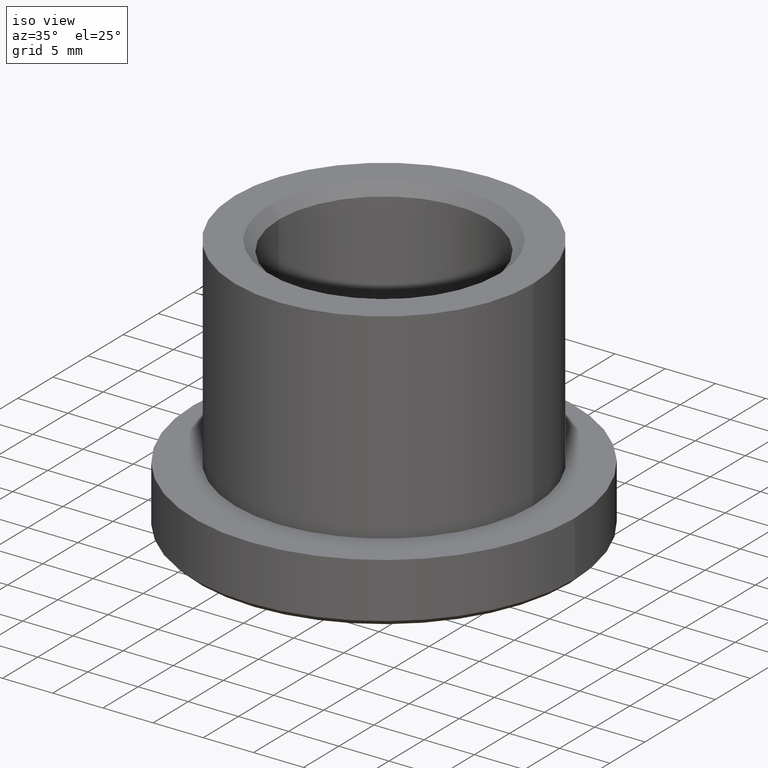
[diagram: clean part render]
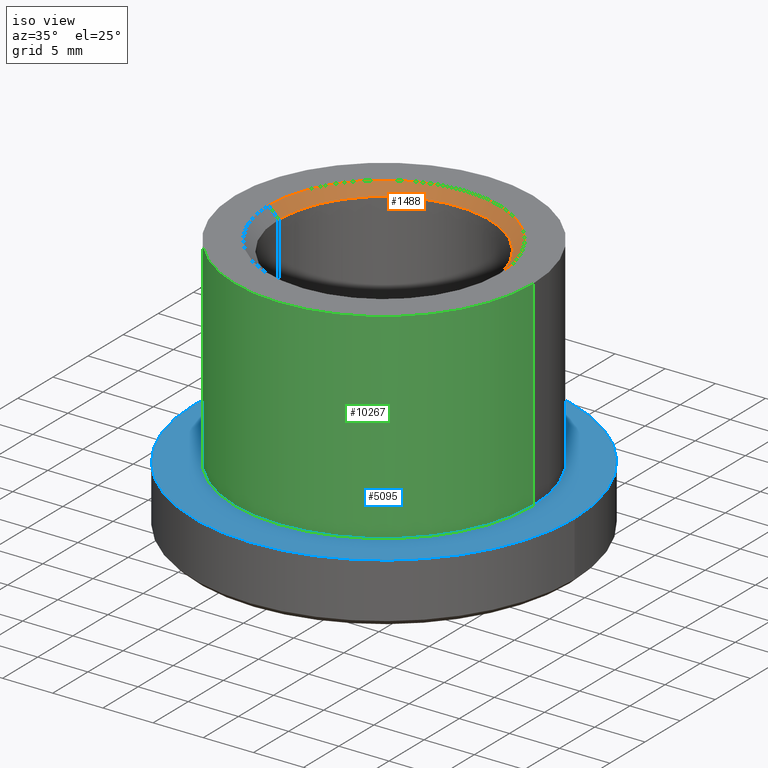
[diagram: same view with three faces highlighted in distinct colors, each labeled with its STEP entity id]
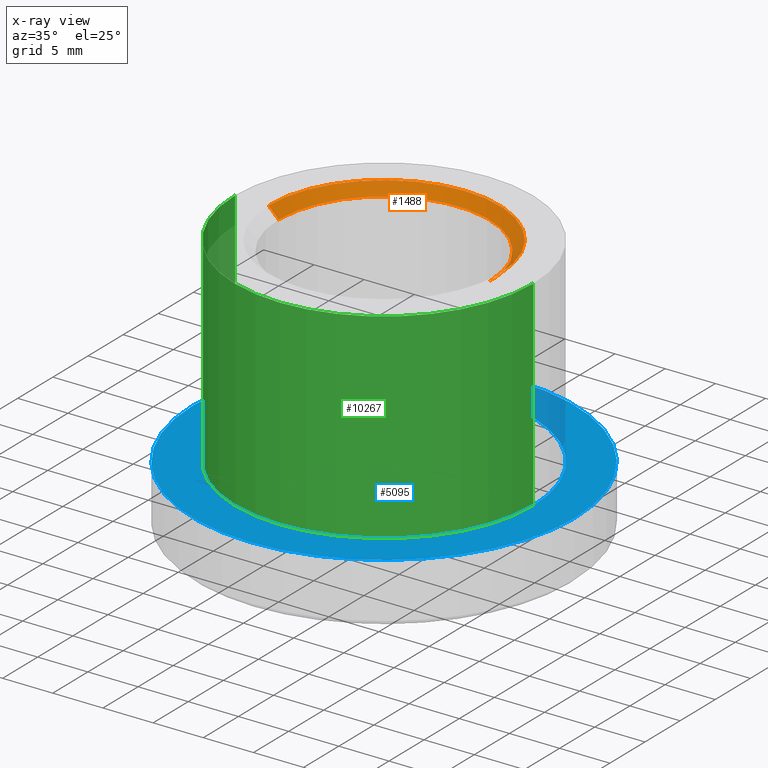
[diagram: x-ray of the same camera — body ghosted, the three highlighted faces saturated]
A machine part, iso view with three faces highlighted in distinct colors.
The next image is the same camera in x-ray (body ghosted, the three faces saturated) — at least one of them is partly hidden behind the body in this view.
Their STEP definitions:

[orange] entity #1488 — the highlighted conical surface has half-angle 45 deg.
#421 = DIRECTION ( 'NONE',  ( 0.000000000000000000, 0.000000000000000000, 1.000000000000000000 ) ) ;
#911 = VERTEX_POINT ( 'NONE', #8747 ) ;
#961 = DIRECTION ( 'NONE',  ( 0.000000000000000000, 0.000000000000000000, 1.000000000000000000 ) ) ;
#1075 = VERTEX_POINT ( 'NONE', #10388 ) ;
#1122 = CARTESIAN_POINT ( 'NONE',  ( 10.49999999999999467, 0.000000000000000000, 11.99999999999999645 ) ) ;
#1316 = ORIENTED_EDGE ( 'NONE', *, *, #5669, .F. ) ;
#1456 = CARTESIAN_POINT ( 'NONE',  ( 10.49999999999999467, 0.000000000000000000, 11.99999999999999645 ) ) ;
#1488 = ADVANCED_FACE ( 'NONE', ( #8992 ), #12753, .F. ) ;
#1790 = AXIS2_PLACEMENT_3D ( 'NONE', #12989, #421, #8793 ) ;
#1978 = CARTESIAN_POINT ( 'NONE',  ( 0.000000000000000000, 0.000000000000000000, 11.99999999999999645 ) ) ;
#3127 = ORIENTED_EDGE ( 'NONE', *, *, #3569, .T. ) ;
#3569 = EDGE_CURVE ( 'NONE', #10801, #1075, #11413, .T. ) ;
#3937 = DIRECTION ( 'NONE',  ( -1.000000000000000000, 0.000000000000000000, 0.000000000000000000 ) ) ;
#4304 = AXIS2_PLACEMENT_3D ( 'NONE', #10307, #10183, #3937 ) ;
#4394 = CARTESIAN_POINT ( 'NONE',  ( -10.49999999999999467, 1.285879139104720239E-15, 11.99999999999999645 ) ) ;
#5040 = VERTEX_POINT ( 'NONE', #4394 ) ;
#5669 = EDGE_CURVE ( 'NONE', #5040, #911, #5679, .T. ) ;
#5679 = LINE ( 'NONE', #8598, #10201 ) ;
#6038 = VECTOR ( 'NONE', #6333, 1000.000000000000000 ) ;
#6333 = DIRECTION ( 'NONE',  ( 0.7071067811865493491, 0.000000000000000000, 0.7071067811865456854 ) ) ;
#6382 = CIRCLE ( 'NONE', #1790, 10.49999999999999467 ) ;
#6765 = ORIENTED_EDGE ( 'NONE', *, *, #13574, .F. ) ;
#7133 = EDGE_CURVE ( 'NONE', #911, #1075, #8748, .T. ) ;
#7158 = AXIS2_PLACEMENT_3D ( 'NONE', #1978, #961, #12384 ) ;
#8598 = CARTESIAN_POINT ( 'NONE',  ( -10.49999999999999467, 1.285879139104720239E-15, 11.99999999999999645 ) ) ;
#8747 = CARTESIAN_POINT ( 'NONE',  ( -11.50000000000000355, 1.408343819019456570E-15, 13.00000000000000000 ) ) ;
#8748 = CIRCLE ( 'NONE', #4304, 11.50000000000000355 ) ;
#8793 = DIRECTION ( 'NONE',  ( -1.000000000000000000, 0.000000000000000000, 0.000000000000000000 ) ) ;
#8992 = FACE_OUTER_BOUND ( 'NONE', #10011, .T. ) ;
#9969 = ORIENTED_EDGE ( 'NONE', *, *, #7133, .F. ) ;
#10011 = EDGE_LOOP ( 'NONE', ( #1316, #6765, #3127, #9969 ) ) ;
#10183 = DIRECTION ( 'NONE',  ( 0.000000000000000000, 0.000000000000000000, -1.000000000000000000 ) ) ;
#10201 = VECTOR ( 'NONE', #10948, 1000.000000000000000 ) ;
#10307 = CARTESIAN_POINT ( 'NONE',  ( 0.000000000000000000, 0.000000000000000000, 13.00000000000000000 ) ) ;
#10388 = CARTESIAN_POINT ( 'NONE',  ( 11.50000000000000355, 0.000000000000000000, 13.00000000000000000 ) ) ;
#10801 = VERTEX_POINT ( 'NONE', #1456 ) ;
#10948 = DIRECTION ( 'NONE',  ( -0.7071067811865493491, 8.659560562354955045E-17, 0.7071067811865456854 ) ) ;
#11413 = LINE ( 'NONE', #1122, #6038 ) ;
#12384 = DIRECTION ( 'NONE',  ( 1.000000000000000000, 0.000000000000000000, 0.000000000000000000 ) ) ;
#12753 = CONICAL_SURFACE ( 'NONE', #7158, 10.49999999999999467, 0.7853981633974509435 ) ;
#12989 = CARTESIAN_POINT ( 'NONE',  ( 0.000000000000000000, 0.000000000000000000, 11.99999999999999645 ) ) ;
#13574 = EDGE_CURVE ( 'NONE', #10801, #5040, #6382, .T. ) ;

[blue] entity #5095 — the highlighted planar face has unit normal (0, 0, -1).
#132 = CARTESIAN_POINT ( 'NONE',  ( 0.000000000000000000, 14.84999999999999964, -6.999999999999999112 ) ) ;
#321 = CARTESIAN_POINT ( 'NONE',  ( 19.00000000000000000, 0.000000000000000000, -6.999999999999997335 ) ) ;
#467 = AXIS2_PLACEMENT_3D ( 'NONE', #12618, #11680, #6467 ) ;
#1312 = DIRECTION ( 'NONE',  ( -1.000000000000000000, 0.000000000000000000, -0.000000000000000000 ) ) ;
#1991 = AXIS2_PLACEMENT_3D ( 'NONE', #132, #3354, #1312 ) ;
#2524 = EDGE_CURVE ( 'NONE', #4617, #5427, #2913, .T. ) ;
#2913 = CIRCLE ( 'NONE', #467, 14.84999999999999964 ) ;
#2958 = CARTESIAN_POINT ( 'NONE',  ( 14.84999999999999964, 0.000000000000000000, -6.999999999999997335 ) ) ;
#3354 = DIRECTION ( 'NONE',  ( 0.000000000000000000, 0.000000000000000000, -1.000000000000000000 ) ) ;
#3380 = FACE_OUTER_BOUND ( 'NONE', #10308, .T. ) ;
#3469 = EDGE_LOOP ( 'NONE', ( #4316, #8721 ) ) ;
#4316 = ORIENTED_EDGE ( 'NONE', *, *, #5126, .F. ) ;
#4466 = VERTEX_POINT ( 'NONE', #6105 ) ;
#4499 = CARTESIAN_POINT ( 'NONE',  ( 0.000000000000000000, 0.000000000000000000, -6.999999999999997335 ) ) ;
#4617 = VERTEX_POINT ( 'NONE', #12209 ) ;
#4681 = DIRECTION ( 'NONE',  ( -0.000000000000000000, -0.000000000000000000, 1.000000000000000000 ) ) ;
#5095 = ADVANCED_FACE ( 'NONE', ( #6988, #3380 ), #6615, .F. ) ;
#5126 = EDGE_CURVE ( 'NONE', #5427, #4617, #13479, .T. ) ;
#5257 = VERTEX_POINT ( 'NONE', #321 ) ;
#5427 = VERTEX_POINT ( 'NONE', #2958 ) ;
#5991 = CARTESIAN_POINT ( 'NONE',  ( 0.000000000000000000, 0.000000000000000000, -6.999999999999997335 ) ) ;
#6032 = DIRECTION ( 'NONE',  ( -0.000000000000000000, -0.000000000000000000, 1.000000000000000000 ) ) ;
#6105 = CARTESIAN_POINT ( 'NONE',  ( -19.00000000000000000, 2.326828918379970970E-15, -6.999999999999997335 ) ) ;
#6467 = DIRECTION ( 'NONE',  ( 1.000000000000000000, 0.000000000000000000, 0.000000000000000000 ) ) ;
#6615 = PLANE ( 'NONE',  #1991 ) ;
#6988 = FACE_BOUND ( 'NONE', #3469, .T. ) ;
#7030 = DIRECTION ( 'NONE',  ( 1.000000000000000000, 0.000000000000000000, 0.000000000000000000 ) ) ;
#7078 = AXIS2_PLACEMENT_3D ( 'NONE', #9014, #4681, #7946 ) ;
#7616 = DIRECTION ( 'NONE',  ( 1.000000000000000000, 0.000000000000000000, 0.000000000000000000 ) ) ;
#7946 = DIRECTION ( 'NONE',  ( 1.000000000000000000, 0.000000000000000000, 0.000000000000000000 ) ) ;
#8170 = EDGE_CURVE ( 'NONE', #4466, #5257, #12485, .T. ) ;
#8721 = ORIENTED_EDGE ( 'NONE', *, *, #2524, .F. ) ;
#9014 = CARTESIAN_POINT ( 'NONE',  ( 0.000000000000000000, 0.000000000000000000, -6.999999999999997335 ) ) ;
#9226 = ORIENTED_EDGE ( 'NONE', *, *, #8170, .T. ) ;
#9973 = AXIS2_PLACEMENT_3D ( 'NONE', #4499, #12808, #7616 ) ;
#10251 = EDGE_CURVE ( 'NONE', #5257, #4466, #11650, .T. ) ;
#10308 = EDGE_LOOP ( 'NONE', ( #10331, #9226 ) ) ;
#10331 = ORIENTED_EDGE ( 'NONE', *, *, #10251, .T. ) ;
#11650 = CIRCLE ( 'NONE', #7078, 19.00000000000000000 ) ;
#11680 = DIRECTION ( 'NONE',  ( -0.000000000000000000, -0.000000000000000000, 1.000000000000000000 ) ) ;
#12209 = CARTESIAN_POINT ( 'NONE',  ( -14.85000000000000142, 1.818600496733819948E-15, -6.999999999999997335 ) ) ;
#12485 = CIRCLE ( 'NONE', #12707, 19.00000000000000000 ) ;
#12618 = CARTESIAN_POINT ( 'NONE',  ( 0.000000000000000000, 0.000000000000000000, -6.999999999999997335 ) ) ;
#12707 = AXIS2_PLACEMENT_3D ( 'NONE', #5991, #6032, #7030 ) ;
#12808 = DIRECTION ( 'NONE',  ( -0.000000000000000000, -0.000000000000000000, 1.000000000000000000 ) ) ;
#13479 = CIRCLE ( 'NONE', #9973, 14.84999999999999964 ) ;

[green] entity #10267 — the highlighted cylindrical surface (partial cylindrical patch) has radius 14.85 mm, axis along (-0, -0, 1).
#97 = VERTEX_POINT ( 'NONE', #9753 ) ;
#144 = VERTEX_POINT ( 'NONE', #2891 ) ;
#467 = AXIS2_PLACEMENT_3D ( 'NONE', #12618, #11680, #6467 ) ;
#899 = CARTESIAN_POINT ( 'NONE',  ( -14.84999999999999787, 1.818600496733819553E-15, 13.00000000000000000 ) ) ;
#915 = AXIS2_PLACEMENT_3D ( 'NONE', #7744, #6568, #1437 ) ;
#1437 = DIRECTION ( 'NONE',  ( 1.000000000000000000, 0.000000000000000000, 0.000000000000000000 ) ) ;
#1471 = LINE ( 'NONE', #4323, #7730 ) ;
#2116 = FACE_OUTER_BOUND ( 'NONE', #5322, .T. ) ;
#2524 = EDGE_CURVE ( 'NONE', #4617, #5427, #2913, .T. ) ;
#2891 = CARTESIAN_POINT ( 'NONE',  ( 14.84999999999999787, 0.000000000000000000, 13.00000000000000000 ) ) ;
#2913 = CIRCLE ( 'NONE', #467, 14.84999999999999964 ) ;
#2958 = CARTESIAN_POINT ( 'NONE',  ( 14.84999999999999964, 0.000000000000000000, -6.999999999999997335 ) ) ;
#3734 = EDGE_CURVE ( 'NONE', #97, #144, #4029, .T. ) ;
#3774 = ORIENTED_EDGE ( 'NONE', *, *, #3734, .F. ) ;
#4029 = CIRCLE ( 'NONE', #915, 14.84999999999999787 ) ;
#4313 = ORIENTED_EDGE ( 'NONE', *, *, #2524, .T. ) ;
#4323 = CARTESIAN_POINT ( 'NONE',  ( 14.84999999999999787, 0.000000000000000000, 13.00000000000000000 ) ) ;
#4617 = VERTEX_POINT ( 'NONE', #12209 ) ;
#4629 = AXIS2_PLACEMENT_3D ( 'NONE', #9956, #10049, #11069 ) ;
#5322 = EDGE_LOOP ( 'NONE', ( #10488, #4313, #11438, #3774 ) ) ;
#5427 = VERTEX_POINT ( 'NONE', #2958 ) ;
#5810 = EDGE_CURVE ( 'NONE', #4617, #97, #7135, .T. ) ;
#6467 = DIRECTION ( 'NONE',  ( 1.000000000000000000, 0.000000000000000000, 0.000000000000000000 ) ) ;
#6568 = DIRECTION ( 'NONE',  ( -0.000000000000000000, -0.000000000000000000, 1.000000000000000000 ) ) ;
#7135 = LINE ( 'NONE', #899, #9571 ) ;
#7730 = VECTOR ( 'NONE', #8530, 1000.000000000000000 ) ;
#7744 = CARTESIAN_POINT ( 'NONE',  ( 0.000000000000000000, 0.000000000000000000, 13.00000000000000000 ) ) ;
#8262 = DIRECTION ( 'NONE',  ( -0.000000000000000000, -0.000000000000000000, 1.000000000000000000 ) ) ;
#8530 = DIRECTION ( 'NONE',  ( -0.000000000000000000, -0.000000000000000000, 1.000000000000000000 ) ) ;
#9571 = VECTOR ( 'NONE', #8262, 1000.000000000000000 ) ;
#9610 = EDGE_CURVE ( 'NONE', #5427, #144, #1471, .T. ) ;
#9753 = CARTESIAN_POINT ( 'NONE',  ( -14.84999999999999787, 1.818600496733819553E-15, 13.00000000000000000 ) ) ;
#9956 = CARTESIAN_POINT ( 'NONE',  ( 0.000000000000000000, 0.000000000000000000, 13.00000000000000000 ) ) ;
#10049 = DIRECTION ( 'NONE',  ( -0.000000000000000000, -0.000000000000000000, 1.000000000000000000 ) ) ;
#10267 = ADVANCED_FACE ( 'NONE', ( #2116 ), #13226, .T. ) ;
#10488 = ORIENTED_EDGE ( 'NONE', *, *, #5810, .F. ) ;
#11069 = DIRECTION ( 'NONE',  ( 1.000000000000000000, 0.000000000000000000, 0.000000000000000000 ) ) ;
#11438 = ORIENTED_EDGE ( 'NONE', *, *, #9610, .T. ) ;
#11680 = DIRECTION ( 'NONE',  ( -0.000000000000000000, -0.000000000000000000, 1.000000000000000000 ) ) ;
#12209 = CARTESIAN_POINT ( 'NONE',  ( -14.85000000000000142, 1.818600496733819948E-15, -6.999999999999997335 ) ) ;
#12618 = CARTESIAN_POINT ( 'NONE',  ( 0.000000000000000000, 0.000000000000000000, -6.999999999999997335 ) ) ;
#13226 = CYLINDRICAL_SURFACE ( 'NONE', #4629, 14.84999999999999787 ) ;